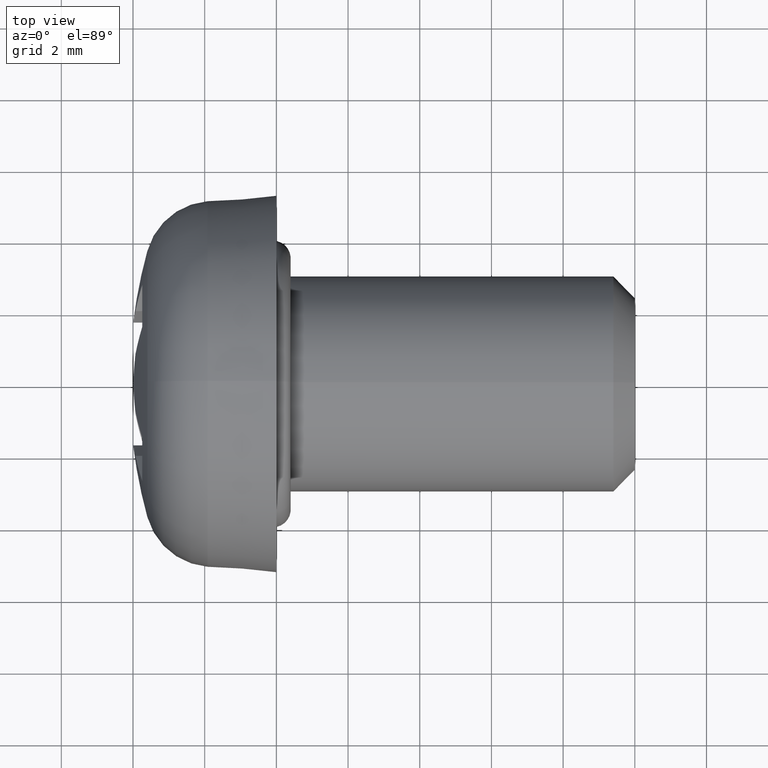
[diagram: clean part render]
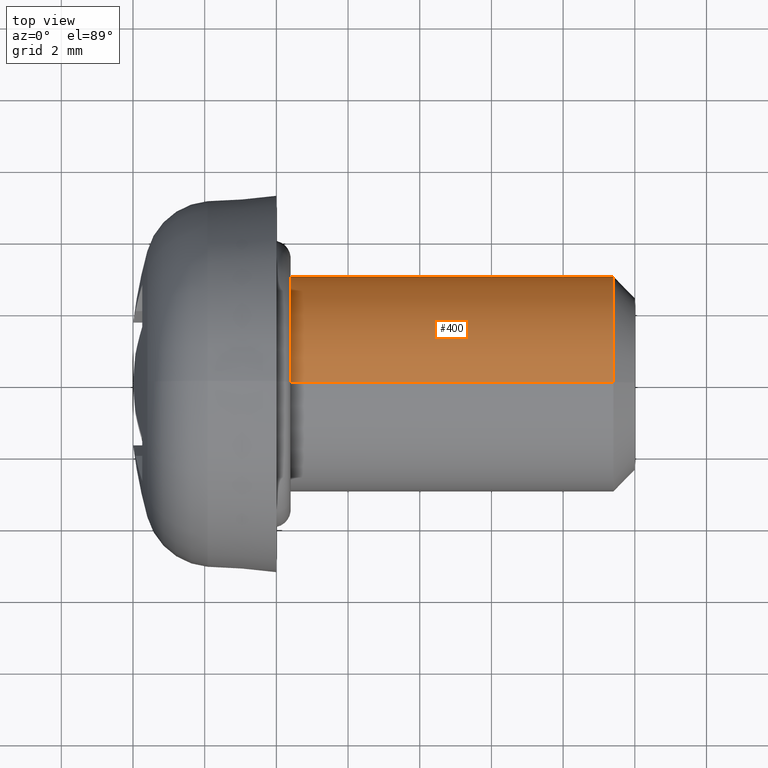
[diagram: same view with one face highlighted and labeled with its STEP entity id]
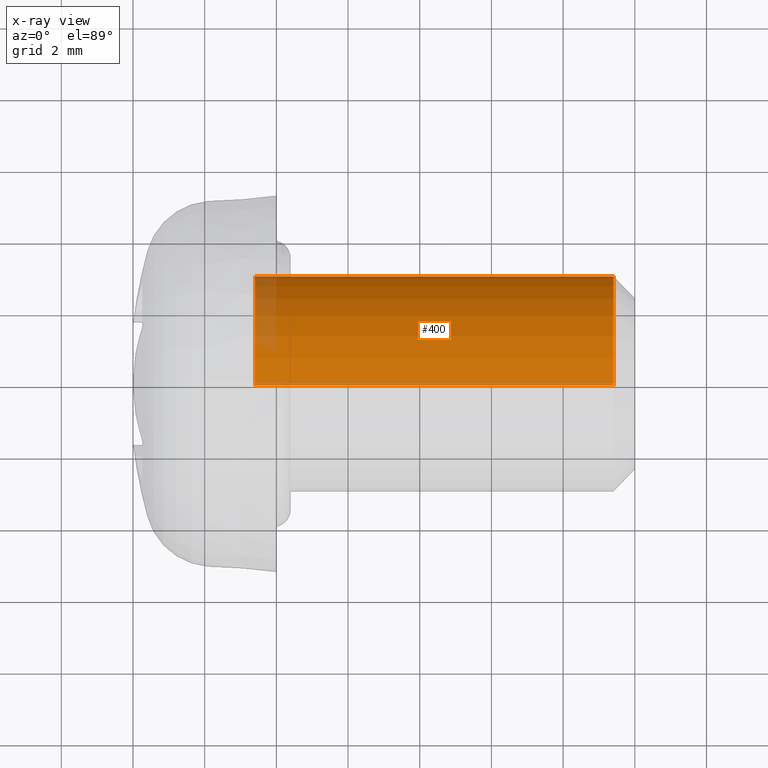
[diagram: x-ray of the same camera — body ghosted, the highlighted face saturated]
A machine part, top view. The second image highlights one B-rep face of the part: STEP entity #400.
The next image is the same camera in x-ray: the body ghosted, the highlighted face saturated — about 7% of this face is hidden behind the body in this view.
In plain terms, the highlighted cylindrical surface (partial cylindrical patch) has radius 3 mm, axis along (-1, -0, -0).
Its self-contained STEP definition (entity closure, byte-faithful):
#58 = DIRECTION ( 'NONE',  ( 0.0000000000000000000, 0.0000000000000000000, -1.000000000000000000 ) ) ;
#135 = LINE ( 'NONE', #607, #679 ) ;
#159 = DIRECTION ( 'NONE',  ( -1.000000000000000000, -0.0000000000000000000, -0.0000000000000000000 ) ) ;
#165 = EDGE_CURVE ( 'NONE', #936, #1059, #135, .T. ) ;
#177 = DIRECTION ( 'NONE',  ( -1.000000000000000000, -0.0000000000000000000, -0.0000000000000000000 ) ) ;
#187 = CARTESIAN_POINT ( 'NONE',  ( 9.399999999999998600, 0.0000000000000000000, 3.000000000000000400 ) ) ;
#271 = LINE ( 'NONE', #921, #814 ) ;
#327 = EDGE_CURVE ( 'NONE', #832, #1219, #271, .T. ) ;
#384 = CIRCLE ( 'NONE', #732, 3.000000000000000400 ) ;
#400 = ADVANCED_FACE ( 'NONE', ( #831 ), #1040, .T. ) ;
#447 = EDGE_CURVE ( 'NONE', #832, #936, #384, .T. ) ;
#453 = EDGE_LOOP ( 'NONE', ( #680, #650, #1221, #1201 ) ) ;
#546 = CARTESIAN_POINT ( 'NONE',  ( -0.5999999999999999800, 3.673940397442060400E-016, -3.000000000000000400 ) ) ;
#607 = CARTESIAN_POINT ( 'NONE',  ( 10.00000000000000000, 3.673940397442060400E-016, -3.000000000000000400 ) ) ;
#620 = DIRECTION ( 'NONE',  ( -1.000000000000000000, -0.0000000000000000000, -0.0000000000000000000 ) ) ;
#628 = AXIS2_PLACEMENT_3D ( 'NONE', #1183, #620, #1213 ) ;
#650 = ORIENTED_EDGE ( 'NONE', *, *, #165, .T. ) ;
#679 = VECTOR ( 'NONE', #159, 1000.000000000000000 ) ;
#680 = ORIENTED_EDGE ( 'NONE', *, *, #447, .T. ) ;
#718 = DIRECTION ( 'NONE',  ( 0.0000000000000000000, 0.0000000000000000000, -1.000000000000000000 ) ) ;
#732 = AXIS2_PLACEMENT_3D ( 'NONE', #900, #1193, #718 ) ;
#748 = CARTESIAN_POINT ( 'NONE',  ( -0.5999999999999999800, 0.0000000000000000000, 3.000000000000000400 ) ) ;
#774 = CARTESIAN_POINT ( 'NONE',  ( 9.399999999999998600, 3.673940397442060400E-016, -3.000000000000000400 ) ) ;
#789 = DIRECTION ( 'NONE',  ( 1.000000000000000000, 0.0000000000000000000, 0.0000000000000000000 ) ) ;
#814 = VECTOR ( 'NONE', #177, 1000.000000000000000 ) ;
#823 = EDGE_CURVE ( 'NONE', #1059, #1219, #848, .T. ) ;
#831 = FACE_OUTER_BOUND ( 'NONE', #453, .T. ) ;
#832 = VERTEX_POINT ( 'NONE', #187 ) ;
#846 = AXIS2_PLACEMENT_3D ( 'NONE', #878, #789, #58 ) ;
#848 = CIRCLE ( 'NONE', #846, 3.000000000000000400 ) ;
#878 = CARTESIAN_POINT ( 'NONE',  ( -0.5999999999999999800, 0.0000000000000000000, 0.0000000000000000000 ) ) ;
#900 = CARTESIAN_POINT ( 'NONE',  ( 9.399999999999998600, 0.0000000000000000000, 0.0000000000000000000 ) ) ;
#921 = CARTESIAN_POINT ( 'NONE',  ( 10.00000000000000000, 0.0000000000000000000, 3.000000000000000400 ) ) ;
#936 = VERTEX_POINT ( 'NONE', #774 ) ;
#1040 = CYLINDRICAL_SURFACE ( 'NONE', #628, 3.000000000000000400 ) ;
#1059 = VERTEX_POINT ( 'NONE', #546 ) ;
#1183 = CARTESIAN_POINT ( 'NONE',  ( 10.00000000000000000, 0.0000000000000000000, 0.0000000000000000000 ) ) ;
#1193 = DIRECTION ( 'NONE',  ( -1.000000000000000000, 0.0000000000000000000, 0.0000000000000000000 ) ) ;
#1201 = ORIENTED_EDGE ( 'NONE', *, *, #327, .F. ) ;
#1213 = DIRECTION ( 'NONE',  ( 0.0000000000000000000, 0.0000000000000000000, 1.000000000000000000 ) ) ;
#1219 = VERTEX_POINT ( 'NONE', #748 ) ;
#1221 = ORIENTED_EDGE ( 'NONE', *, *, #823, .T. ) ;